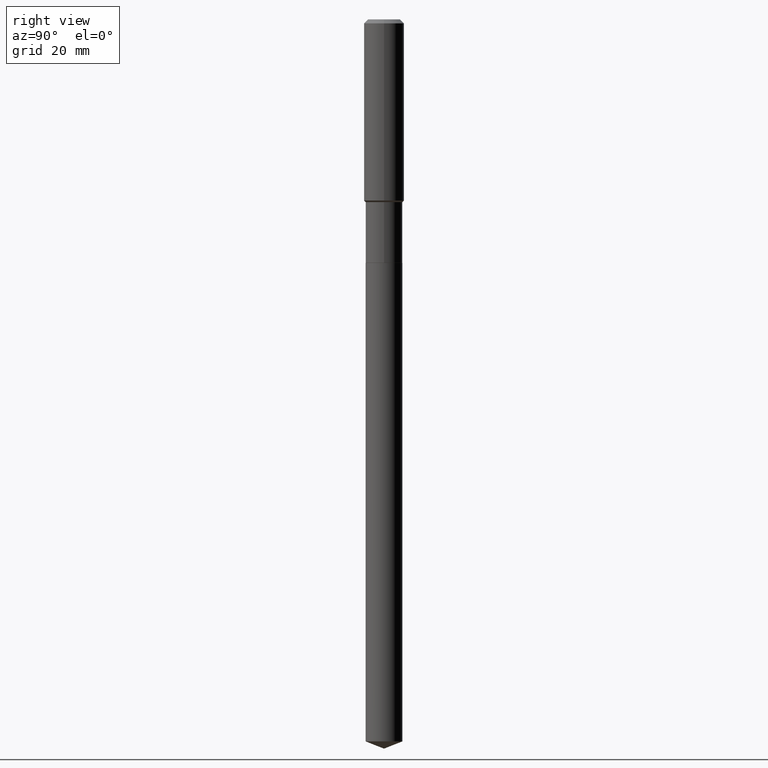
[diagram: clean part render]
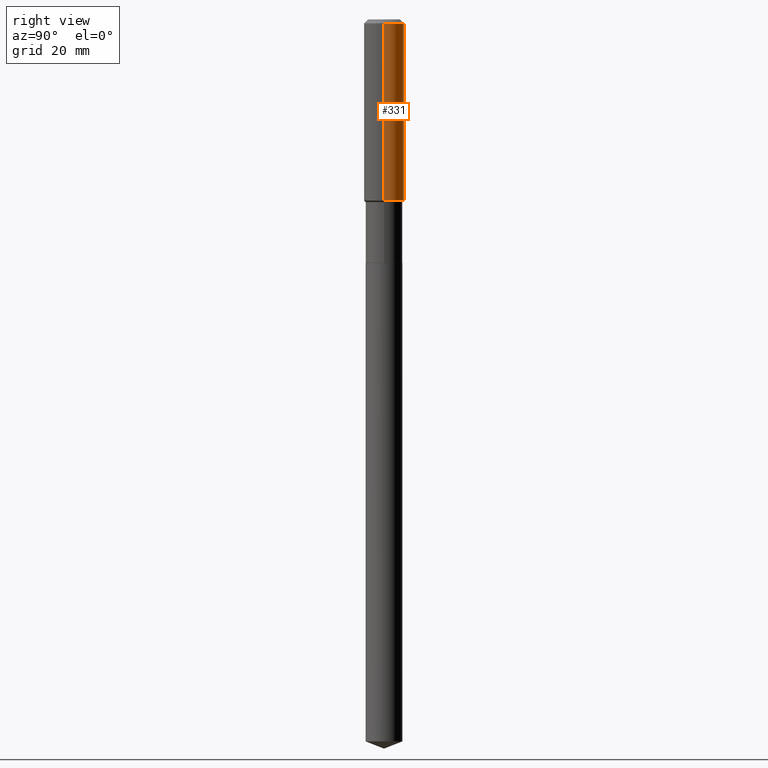
[diagram: same view with one face highlighted and labeled with its STEP entity id]
A machine part, right view. The second image highlights one B-rep face of the part: STEP entity #331.
In plain terms, the highlighted cylindrical surface (edge-blend (fillet) strip) has radius 5 mm, axis along (-0, 0, 1).
Its self-contained STEP definition (entity closure, byte-faithful):
#1 = AXIS2_PLACEMENT_3D ( 'NONE', #376, #455, #132 ) ;
#16 = DIRECTION ( 'NONE',  ( -2.445468806185136597E-29, 3.491481338843145583E-15, 1.000000000000000000 ) ) ;
#34 = EDGE_LOOP ( 'NONE', ( #340, #72, #121, #220 ) ) ;
#72 = ORIENTED_EDGE ( 'NONE', *, *, #237, .T. ) ;
#87 = CIRCLE ( 'NONE', #230, 0.1968500000000000250 ) ;
#121 = ORIENTED_EDGE ( 'NONE', *, *, #394, .F. ) ;
#127 = FACE_OUTER_BOUND ( 'NONE', #34, .T. ) ;
#131 = VECTOR ( 'NONE', #487, 39.37007874015748143 ) ;
#132 = DIRECTION ( 'NONE',  ( 1.000000000000000000, -6.982962677686265922E-15, 0.000000000000000000 ) ) ;
#168 = DIRECTION ( 'NONE',  ( -2.445468806185136877E-29, 3.491481338843145188E-15, 1.000000000000000000 ) ) ;
#183 = CYLINDRICAL_SURFACE ( 'NONE', #321, 0.1968500000000001082 ) ;
#189 = VERTEX_POINT ( 'NONE', #296 ) ;
#205 = DIRECTION ( 'NONE',  ( 1.000000000000000000, -6.982962677686266711E-15, 4.876176775795935793E-29 ) ) ;
#214 = VERTEX_POINT ( 'NONE', #298 ) ;
#215 = VERTEX_POINT ( 'NONE', #256 ) ;
#220 = ORIENTED_EDGE ( 'NONE', *, *, #353, .F. ) ;
#230 = AXIS2_PLACEMENT_3D ( 'NONE', #265, #16, #468 ) ;
#235 = CIRCLE ( 'NONE', #1, 0.1968500000000002192 ) ;
#237 = EDGE_CURVE ( 'NONE', #189, #214, #275, .T. ) ;
#241 = LINE ( 'NONE', #351, #131 ) ;
#256 = CARTESIAN_POINT ( 'NONE',  ( 0.1968500000000002192, -7.589258412176397893E-15, -1.779949999999999477 ) ) ;
#265 = CARTESIAN_POINT ( 'NONE',  ( 9.627810689950948900E-31, -1.374596203102555561E-16, -0.03937000000000026589 ) ) ;
#272 = CARTESIAN_POINT ( 'NONE',  ( -0.1968500000000001082, 1.398703375343757985E-15, -9.682923725166787881E-30 ) ) ;
#275 = LINE ( 'NONE', #272, #459 ) ;
#296 = CARTESIAN_POINT ( 'NONE',  ( -0.1968500000000002192, -4.815958833730096919E-15, -1.779949999999999477 ) ) ;
#298 = CARTESIAN_POINT ( 'NONE',  ( -0.1968500000000000250, -1.777357539348296567E-15, -0.03937000000000026589 ) ) ;
#321 = AXIS2_PLACEMENT_3D ( 'NONE', #486, #396, #205 ) ;
#331 = ADVANCED_FACE ( 'NONE', ( #127 ), #183, .T. ) ;
#340 = ORIENTED_EDGE ( 'NONE', *, *, #390, .T. ) ;
#351 = CARTESIAN_POINT ( 'NONE',  ( 0.1968500000000001082, -1.374596203102542397E-15, 9.598753983154305062E-30 ) ) ;
#353 = EDGE_CURVE ( 'NONE', #215, #440, #241, .T. ) ;
#376 = CARTESIAN_POINT ( 'NONE',  ( 4.352812201569232607E-29, -6.214662209073854707E-15, -1.779949999999999477 ) ) ;
#390 = EDGE_CURVE ( 'NONE', #215, #189, #235, .T. ) ;
#394 = EDGE_CURVE ( 'NONE', #440, #214, #87, .T. ) ;
#396 = DIRECTION ( 'NONE',  ( -2.445468806185136597E-29, 3.491481338843145583E-15, 1.000000000000000000 ) ) ;
#440 = VERTEX_POINT ( 'NONE', #478 ) ;
#455 = DIRECTION ( 'NONE',  ( -2.445468806185136597E-29, 3.491481338843145583E-15, 1.000000000000000000 ) ) ;
#459 = VECTOR ( 'NONE', #168, 39.37007874015748143 ) ;
#468 = DIRECTION ( 'NONE',  ( 1.000000000000000000, -6.982962677686265922E-15, 0.000000000000000000 ) ) ;
#478 = CARTESIAN_POINT ( 'NONE',  ( 0.1968500000000000250, -1.512055823412797189E-15, -0.03937000000000026589 ) ) ;
#486 = CARTESIAN_POINT ( 'NONE',  ( 0.000000000000000000, 0.000000000000000000, 0.000000000000000000 ) ) ;
#487 = DIRECTION ( 'NONE',  ( -2.445468806185136877E-29, 3.491481338843145188E-15, 1.000000000000000000 ) ) ;